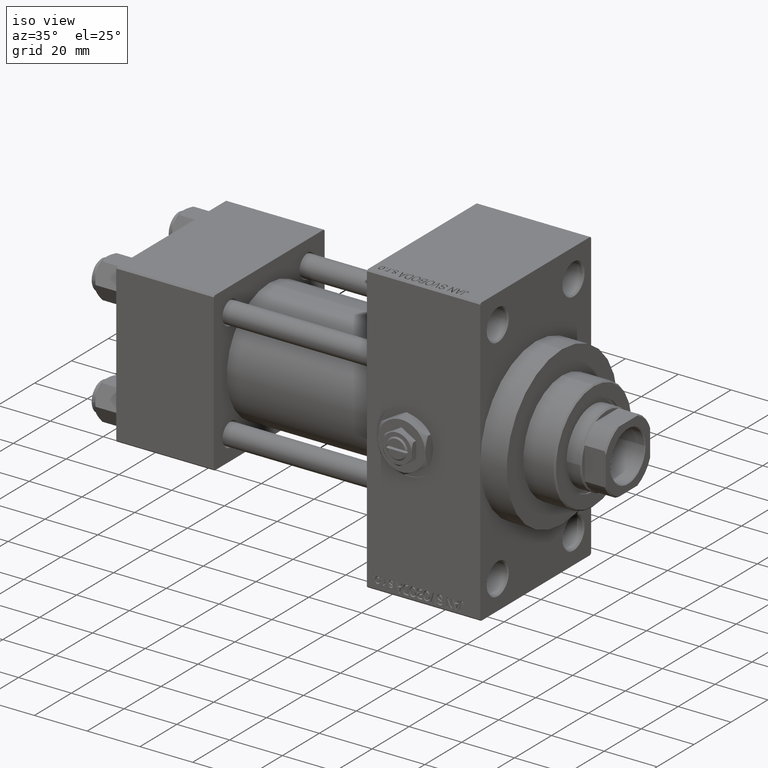
[diagram: clean part render]
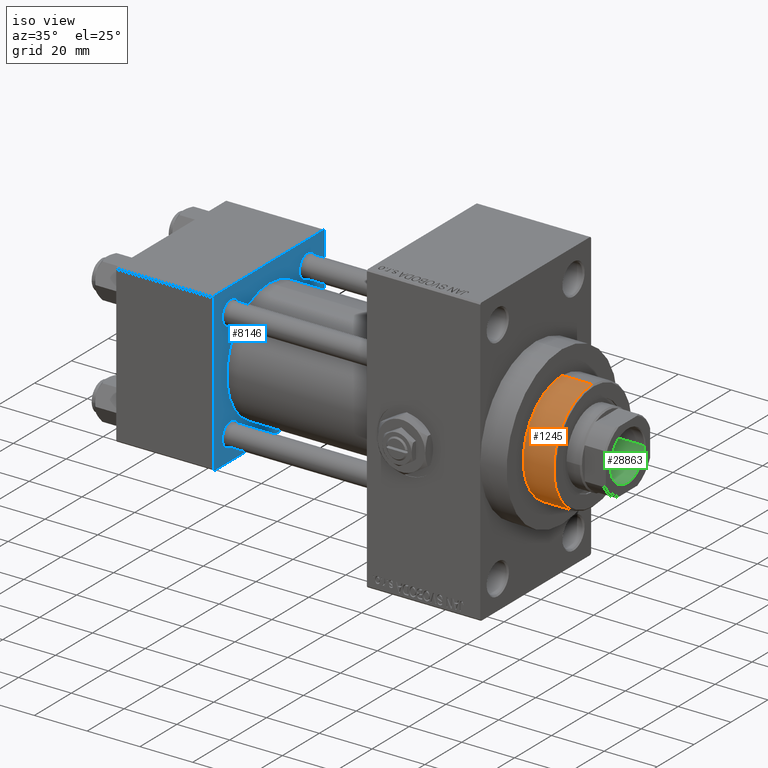
[diagram: same view with three faces highlighted in distinct colors, each labeled with its STEP entity id]
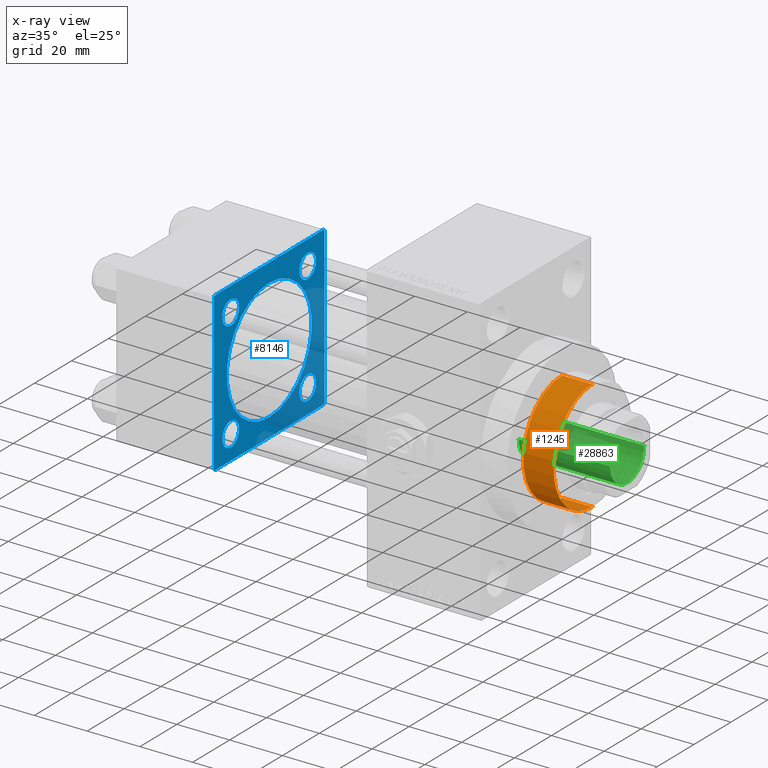
[diagram: x-ray of the same camera — body ghosted, the three highlighted faces saturated]
A machine part, iso view with three faces highlighted in distinct colors.
The next image is the same camera in x-ray (body ghosted, the three faces saturated) — at least one of them is partly hidden behind the body in this view.
Their STEP definitions:

[orange] entity #1245 — the highlighted cylindrical surface (partial cylindrical patch) has radius 21 mm, axis along (-1, 0, 0).
#121 = CARTESIAN_POINT ( 'NONE',  ( -21.00000000000000000, 0.000000000000000000, 55.26000000000000512 ) ) ;
#1245 = ADVANCED_FACE ( 'NONE', ( #4365 ), #20135, .T. ) ;
#1433 = CARTESIAN_POINT ( 'NONE',  ( 21.00000000000000000, 2.571758278209441661E-15, 54.75999999999999091 ) ) ;
#3029 = VERTEX_POINT ( 'NONE', #22249 ) ;
#4365 = FACE_OUTER_BOUND ( 'NONE', #26308, .T. ) ;
#4916 = EDGE_CURVE ( 'NONE', #46135, #16933, #9505, .T. ) ;
#7906 = ORIENTED_EDGE ( 'NONE', *, *, #4916, .T. ) ;
#8801 = DIRECTION ( 'NONE',  ( -0.000000000000000000, -0.000000000000000000, -1.000000000000000000 ) ) ;
#9505 = LINE ( 'NONE', #19871, #23801 ) ;
#9997 = DIRECTION ( 'NONE',  ( 0.000000000000000000, 0.000000000000000000, -1.000000000000000000 ) ) ;
#10892 = VERTEX_POINT ( 'NONE', #17911 ) ;
#12407 = ORIENTED_EDGE ( 'NONE', *, *, #35290, .T. ) ;
#12618 = CIRCLE ( 'NONE', #41740, 21.00000000000000000 ) ;
#13113 = CIRCLE ( 'NONE', #34368, 21.00000000000000000 ) ;
#15714 = CARTESIAN_POINT ( 'NONE',  ( 0.000000000000000000, 0.000000000000000000, 55.26000000000000512 ) ) ;
#16933 = VERTEX_POINT ( 'NONE', #46580 ) ;
#17911 = CARTESIAN_POINT ( 'NONE',  ( -21.00000000000000000, 0.000000000000000000, 43.25999999999999801 ) ) ;
#19871 = CARTESIAN_POINT ( 'NONE',  ( 21.00000000000000000, 2.571758278209441661E-15, 55.26000000000000512 ) ) ;
#20135 = CYLINDRICAL_SURFACE ( 'NONE', #32700, 21.00000000000000000 ) ;
#20826 = DIRECTION ( 'NONE',  ( 1.000000000000000000, 0.000000000000000000, 0.000000000000000000 ) ) ;
#22249 = CARTESIAN_POINT ( 'NONE',  ( -21.00000000000000000, 0.000000000000000000, 54.75999999999999091 ) ) ;
#23801 = VECTOR ( 'NONE', #35396, 1000.000000000000000 ) ;
#26308 = EDGE_LOOP ( 'NONE', ( #43776, #7906, #12407, #31613 ) ) ;
#26350 = DIRECTION ( 'NONE',  ( 0.000000000000000000, 0.000000000000000000, 1.000000000000000000 ) ) ;
#31613 = ORIENTED_EDGE ( 'NONE', *, *, #33954, .F. ) ;
#32700 = AXIS2_PLACEMENT_3D ( 'NONE', #15714, #8801, #38875 ) ;
#33514 = VECTOR ( 'NONE', #45191, 1000.000000000000000 ) ;
#33876 = LINE ( 'NONE', #121, #33514 ) ;
#33954 = EDGE_CURVE ( 'NONE', #3029, #10892, #33876, .T. ) ;
#34368 = AXIS2_PLACEMENT_3D ( 'NONE', #48040, #26350, #44597 ) ;
#35290 = EDGE_CURVE ( 'NONE', #16933, #10892, #13113, .T. ) ;
#35396 = DIRECTION ( 'NONE',  ( -0.000000000000000000, -0.000000000000000000, -1.000000000000000000 ) ) ;
#38875 = DIRECTION ( 'NONE',  ( -1.000000000000000000, 0.000000000000000000, 0.000000000000000000 ) ) ;
#41740 = AXIS2_PLACEMENT_3D ( 'NONE', #43269, #9997, #20826 ) ;
#43269 = CARTESIAN_POINT ( 'NONE',  ( 0.000000000000000000, 0.000000000000000000, 54.75999999999999091 ) ) ;
#43714 = EDGE_CURVE ( 'NONE', #3029, #46135, #12618, .T. ) ;
#43776 = ORIENTED_EDGE ( 'NONE', *, *, #43714, .T. ) ;
#44597 = DIRECTION ( 'NONE',  ( 1.000000000000000000, 0.000000000000000000, 0.000000000000000000 ) ) ;
#45191 = DIRECTION ( 'NONE',  ( -0.000000000000000000, -0.000000000000000000, -1.000000000000000000 ) ) ;
#46135 = VERTEX_POINT ( 'NONE', #1433 ) ;
#46580 = CARTESIAN_POINT ( 'NONE',  ( 21.00000000000000000, 2.571758278209441661E-15, 43.25999999999999801 ) ) ;
#48040 = CARTESIAN_POINT ( 'NONE',  ( 0.000000000000000000, 0.000000000000000000, 43.25999999999999801 ) ) ;

[blue] entity #8146 — the highlighted planar face has unit normal (-1, 0, 0).
#172 = ORIENTED_EDGE ( 'NONE', *, *, #5294, .T. ) ;
#246 = VECTOR ( 'NONE', #44716, 999.9999999999998863 ) ;
#896 = CARTESIAN_POINT ( 'NONE',  ( 37.00000000000000000, 20.84999999999999787, -20.85000000000000142 ) ) ;
#1476 = AXIS2_PLACEMENT_3D ( 'NONE', #33502, #11809, #41863 ) ;
#2222 = CARTESIAN_POINT ( 'NONE',  ( 37.00000000000000000, -20.84999999999999076, -25.34999999999998010 ) ) ;
#2244 = CIRCLE ( 'NONE', #3040, 4.499999999999976019 ) ;
#2251 = CIRCLE ( 'NONE', #28247, 4.499999999999976019 ) ;
#2687 = FACE_BOUND ( 'NONE', #41551, .T. ) ;
#3040 = AXIS2_PLACEMENT_3D ( 'NONE', #8715, #16102, #8952 ) ;
#3218 = ORIENTED_EDGE ( 'NONE', *, *, #6138, .T. ) ;
#4221 = EDGE_CURVE ( 'NONE', #5354, #31389, #23414, .T. ) ;
#4247 = VERTEX_POINT ( 'NONE', #38455 ) ;
#4373 = CARTESIAN_POINT ( 'NONE',  ( 37.00000000000000000, -20.84999999999999076, -20.85000000000000497 ) ) ;
#4715 = VECTOR ( 'NONE', #4931, 1000.000000000000114 ) ;
#4931 = DIRECTION ( 'NONE',  ( -0.000000000000000000, -0.7071067811865474617, -0.7071067811865474617 ) ) ;
#4957 = CARTESIAN_POINT ( 'NONE',  ( 37.00000000000000000, -30.00000000000000000, 29.49999999999999289 ) ) ;
#5294 = EDGE_CURVE ( 'NONE', #12625, #9558, #32482, .T. ) ;
#5354 = VERTEX_POINT ( 'NONE', #36799 ) ;
#5417 = LINE ( 'NONE', #31798, #4715 ) ;
#5592 = CARTESIAN_POINT ( 'NONE',  ( 37.00000000000000000, -20.84999999999999076, 25.34999999999998010 ) ) ;
#5652 = CARTESIAN_POINT ( 'NONE',  ( 37.00000000000000000, -20.84999999999999076, -20.85000000000000497 ) ) ;
#5807 = DIRECTION ( 'NONE',  ( 0.000000000000000000, 0.000000000000000000, -1.000000000000000000 ) ) ;
#6080 = ORIENTED_EDGE ( 'NONE', *, *, #24672, .T. ) ;
#6138 = EDGE_CURVE ( 'NONE', #5354, #24399, #14667, .T. ) ;
#6222 = DIRECTION ( 'NONE',  ( 0.000000000000000000, 0.000000000000000000, -1.000000000000000000 ) ) ;
#6771 = CARTESIAN_POINT ( 'NONE',  ( 37.00000000000000000, 29.99999999999999289, 29.50000000000000000 ) ) ;
#7490 = DIRECTION ( 'NONE',  ( 0.000000000000000000, 0.7071067811865474617, -0.7071067811865474617 ) ) ;
#7547 = VECTOR ( 'NONE', #32965, 1000.000000000000000 ) ;
#7768 = CARTESIAN_POINT ( 'NONE',  ( 37.00000000000000000, 20.84999999999999787, 16.35000000000002274 ) ) ;
#7875 = EDGE_LOOP ( 'NONE', ( #33198, #41206 ) ) ;
#8146 = ADVANCED_FACE ( 'NONE', ( #14487, #24869, #47289, #2687, #29527, #37161 ), #36687, .F. ) ;
#8715 = CARTESIAN_POINT ( 'NONE',  ( 37.00000000000000000, -20.84999999999999076, 20.85000000000000497 ) ) ;
#8952 = DIRECTION ( 'NONE',  ( 0.000000000000000000, 0.000000000000000000, 1.000000000000000000 ) ) ;
#9192 = CARTESIAN_POINT ( 'NONE',  ( 37.00000000000000000, 29.49999999999999289, 30.00000000000000000 ) ) ;
#9206 = DIRECTION ( 'NONE',  ( -1.000000000000000000, 0.000000000000000000, -0.000000000000000000 ) ) ;
#9347 = VERTEX_POINT ( 'NONE', #5592 ) ;
#9558 = VERTEX_POINT ( 'NONE', #7768 ) ;
#9945 = DIRECTION ( 'NONE',  ( 0.000000000000000000, 0.000000000000000000, 1.000000000000000000 ) ) ;
#10408 = VECTOR ( 'NONE', #16512, 1000.000000000000000 ) ;
#10411 = VERTEX_POINT ( 'NONE', #31070 ) ;
#10559 = ORIENTED_EDGE ( 'NONE', *, *, #40265, .F. ) ;
#10564 = EDGE_LOOP ( 'NONE', ( #26357, #3218, #45908, #22432, #15122, #38532, #14546, #31291 ) ) ;
#10798 = DIRECTION ( 'NONE',  ( -0.000000000000000000, 0.000000000000000000, 1.000000000000000000 ) ) ;
#11200 = LINE ( 'NONE', #36837, #29575 ) ;
#11738 = EDGE_LOOP ( 'NONE', ( #47345, #10559 ) ) ;
#11768 = CIRCLE ( 'NONE', #21193, 4.499999999999976019 ) ;
#11809 = DIRECTION ( 'NONE',  ( 1.000000000000000000, -0.000000000000000000, 0.000000000000000000 ) ) ;
#11823 = LINE ( 'NONE', #23383, #14963 ) ;
#12179 = DIRECTION ( 'NONE',  ( 0.000000000000000000, 0.000000000000000000, 1.000000000000000000 ) ) ;
#12625 = VERTEX_POINT ( 'NONE', #24670 ) ;
#12783 = CARTESIAN_POINT ( 'NONE',  ( 37.00000000000000000, -30.00000000000000000, -29.50000000000001776 ) ) ;
#12969 = CARTESIAN_POINT ( 'NONE',  ( 37.00000000000000000, -30.00000000000000000, 29.99999999999999289 ) ) ;
#13065 = DIRECTION ( 'NONE',  ( 0.000000000000000000, 0.000000000000000000, 1.000000000000000000 ) ) ;
#13363 = VERTEX_POINT ( 'NONE', #4957 ) ;
#13382 = CARTESIAN_POINT ( 'NONE',  ( 37.00000000000000000, 29.99999999999999289, 30.00000000000000000 ) ) ;
#14311 = VERTEX_POINT ( 'NONE', #35110 ) ;
#14487 = FACE_BOUND ( 'NONE', #26674, .T. ) ;
#14546 = ORIENTED_EDGE ( 'NONE', *, *, #25121, .T. ) ;
#14633 = CARTESIAN_POINT ( 'NONE',  ( 37.00000000000000000, 20.84999999999999787, 20.85000000000000142 ) ) ;
#14667 = LINE ( 'NONE', #18355, #246 ) ;
#14963 = VECTOR ( 'NONE', #47035, 1000.000000000000114 ) ;
#15122 = ORIENTED_EDGE ( 'NONE', *, *, #33386, .T. ) ;
#15547 = CARTESIAN_POINT ( 'NONE',  ( 37.00000000000000000, -20.84999999999999076, 16.35000000000002629 ) ) ;
#15602 = VERTEX_POINT ( 'NONE', #36231 ) ;
#15704 = EDGE_CURVE ( 'NONE', #14311, #35899, #23213, .T. ) ;
#16102 = DIRECTION ( 'NONE',  ( -1.000000000000000000, 0.000000000000000000, -0.000000000000000000 ) ) ;
#16512 = DIRECTION ( 'NONE',  ( 0.000000000000000000, -1.000000000000000000, -1.156482317317871725E-16 ) ) ;
#16536 = AXIS2_PLACEMENT_3D ( 'NONE', #14633, #29670, #48623 ) ;
#17336 = AXIS2_PLACEMENT_3D ( 'NONE', #46814, #46329, #13065 ) ;
#17449 = LINE ( 'NONE', #40126, #7547 ) ;
#17607 = AXIS2_PLACEMENT_3D ( 'NONE', #40854, #39905, #10798 ) ;
#18296 = VECTOR ( 'NONE', #5807, 1000.000000000000000 ) ;
#18355 = CARTESIAN_POINT ( 'NONE',  ( 37.00000000000000000, 29.99999999999999289, -29.50000000000000000 ) ) ;
#19354 = DIRECTION ( 'NONE',  ( -1.000000000000000000, 0.000000000000000000, -0.000000000000000000 ) ) ;
#19408 = DIRECTION ( 'NONE',  ( -1.000000000000000000, 0.000000000000000000, -0.000000000000000000 ) ) ;
#19605 = AXIS2_PLACEMENT_3D ( 'NONE', #48456, #22831, #33206 ) ;
#19961 = CARTESIAN_POINT ( 'NONE',  ( 37.00000000000000000, 29.99999999999999289, -30.00000000000000000 ) ) ;
#20190 = DIRECTION ( 'NONE',  ( 0.000000000000000000, 0.000000000000000000, 1.000000000000000000 ) ) ;
#20757 = DIRECTION ( 'NONE',  ( 0.000000000000000000, 0.000000000000000000, 1.000000000000000000 ) ) ;
#20915 = DIRECTION ( 'NONE',  ( -1.000000000000000000, 0.000000000000000000, -0.000000000000000000 ) ) ;
#21193 = AXIS2_PLACEMENT_3D ( 'NONE', #5652, #20915, #20190 ) ;
#21265 = CIRCLE ( 'NONE', #17336, 4.499999999999976019 ) ;
#21923 = EDGE_CURVE ( 'NONE', #9347, #48445, #2244, .T. ) ;
#22432 = ORIENTED_EDGE ( 'NONE', *, *, #25990, .T. ) ;
#22554 = CARTESIAN_POINT ( 'NONE',  ( 37.00000000000000000, -29.50000000000000000, -30.00000000000000711 ) ) ;
#22831 = DIRECTION ( 'NONE',  ( 1.000000000000000000, -0.000000000000000000, 0.000000000000000000 ) ) ;
#23213 = CIRCLE ( 'NONE', #29526, 4.499999999999976019 ) ;
#23383 = CARTESIAN_POINT ( 'NONE',  ( 37.00000000000000000, 29.49999999999999289, 30.00000000000000000 ) ) ;
#23414 = LINE ( 'NONE', #19961, #10408 ) ;
#24399 = VERTEX_POINT ( 'NONE', #34780 ) ;
#24670 = CARTESIAN_POINT ( 'NONE',  ( 37.00000000000000000, 20.84999999999999787, 25.34999999999997655 ) ) ;
#24672 = EDGE_CURVE ( 'NONE', #48445, #9347, #28308, .T. ) ;
#24869 = FACE_BOUND ( 'NONE', #7875, .T. ) ;
#25121 = EDGE_CURVE ( 'NONE', #13363, #34712, #47682, .T. ) ;
#25990 = EDGE_CURVE ( 'NONE', #29564, #34034, #11823, .T. ) ;
#26357 = ORIENTED_EDGE ( 'NONE', *, *, #4221, .F. ) ;
#26674 = EDGE_LOOP ( 'NONE', ( #31829, #43167 ) ) ;
#27324 = EDGE_CURVE ( 'NONE', #9558, #12625, #37791, .T. ) ;
#27419 = CIRCLE ( 'NONE', #1476, 23.00000000000000000 ) ;
#27638 = ORIENTED_EDGE ( 'NONE', *, *, #21923, .T. ) ;
#27941 = CARTESIAN_POINT ( 'NONE',  ( 37.00000000000000000, 20.84999999999999787, 20.85000000000000142 ) ) ;
#28247 = AXIS2_PLACEMENT_3D ( 'NONE', #896, #19354, #20757 ) ;
#28308 = CIRCLE ( 'NONE', #40885, 4.499999999999976019 ) ;
#29020 = CIRCLE ( 'NONE', #19605, 23.00000000000000000 ) ;
#29526 = AXIS2_PLACEMENT_3D ( 'NONE', #4373, #19408, #37668 ) ;
#29527 = FACE_BOUND ( 'NONE', #11738, .T. ) ;
#29564 = VERTEX_POINT ( 'NONE', #6771 ) ;
#29575 = VECTOR ( 'NONE', #7490, 1000.000000000000114 ) ;
#29670 = DIRECTION ( 'NONE',  ( -1.000000000000000000, 0.000000000000000000, -0.000000000000000000 ) ) ;
#31070 = CARTESIAN_POINT ( 'NONE',  ( 37.00000000000000000, -2.602085213965210642E-15, 23.00000000000000000 ) ) ;
#31291 = ORIENTED_EDGE ( 'NONE', *, *, #33893, .T. ) ;
#31389 = VERTEX_POINT ( 'NONE', #22554 ) ;
#31798 = CARTESIAN_POINT ( 'NONE',  ( 37.00000000000000000, -30.00000000000000000, 29.49999999999999289 ) ) ;
#31829 = ORIENTED_EDGE ( 'NONE', *, *, #45077, .T. ) ;
#32482 = CIRCLE ( 'NONE', #39543, 4.499999999999976019 ) ;
#32933 = EDGE_LOOP ( 'NONE', ( #6080, #27638 ) ) ;
#32965 = DIRECTION ( 'NONE',  ( 0.000000000000000000, -1.000000000000000000, -1.156482317317871725E-16 ) ) ;
#33198 = ORIENTED_EDGE ( 'NONE', *, *, #47091, .T. ) ;
#33206 = DIRECTION ( 'NONE',  ( 0.000000000000000000, 0.000000000000000000, 1.000000000000000000 ) ) ;
#33386 = EDGE_CURVE ( 'NONE', #34034, #4247, #17449, .T. ) ;
#33502 = CARTESIAN_POINT ( 'NONE',  ( 37.00000000000000000, -2.602085213965210642E-15, 0.000000000000000000 ) ) ;
#33893 = EDGE_CURVE ( 'NONE', #34712, #31389, #11200, .T. ) ;
#34034 = VERTEX_POINT ( 'NONE', #9192 ) ;
#34712 = VERTEX_POINT ( 'NONE', #12783 ) ;
#34780 = CARTESIAN_POINT ( 'NONE',  ( 37.00000000000000000, 29.99999999999999289, -29.50000000000000000 ) ) ;
#35110 = CARTESIAN_POINT ( 'NONE',  ( 37.00000000000000000, -20.84999999999999076, -16.35000000000002629 ) ) ;
#35899 = VERTEX_POINT ( 'NONE', #2222 ) ;
#36231 = CARTESIAN_POINT ( 'NONE',  ( 37.00000000000000000, 2.146024240737012665E-16, -23.00000000000000000 ) ) ;
#36687 = PLANE ( 'NONE',  #17607 ) ;
#36799 = CARTESIAN_POINT ( 'NONE',  ( 37.00000000000000000, 29.49999999999997868, -30.00000000000000000 ) ) ;
#36837 = CARTESIAN_POINT ( 'NONE',  ( 37.00000000000000000, -29.50000000000001066, -30.00000000000000711 ) ) ;
#37161 = FACE_OUTER_BOUND ( 'NONE', #10564, .T. ) ;
#37668 = DIRECTION ( 'NONE',  ( 0.000000000000000000, 0.000000000000000000, 1.000000000000000000 ) ) ;
#37791 = CIRCLE ( 'NONE', #16536, 4.499999999999976019 ) ;
#37997 = VERTEX_POINT ( 'NONE', #46223 ) ;
#38455 = CARTESIAN_POINT ( 'NONE',  ( 37.00000000000000000, -29.49999999999998579, 29.99999999999999289 ) ) ;
#38532 = ORIENTED_EDGE ( 'NONE', *, *, #47190, .T. ) ;
#39262 = LINE ( 'NONE', #13382, #45707 ) ;
#39483 = EDGE_CURVE ( 'NONE', #37997, #40785, #2251, .T. ) ;
#39543 = AXIS2_PLACEMENT_3D ( 'NONE', #27941, #9206, #12179 ) ;
#39905 = DIRECTION ( 'NONE',  ( -1.000000000000000000, 0.000000000000000000, -0.000000000000000000 ) ) ;
#39960 = EDGE_CURVE ( 'NONE', #10411, #15602, #27419, .T. ) ;
#40013 = CARTESIAN_POINT ( 'NONE',  ( 37.00000000000000000, -20.84999999999999076, 20.85000000000000497 ) ) ;
#40126 = CARTESIAN_POINT ( 'NONE',  ( 37.00000000000000000, 29.99999999999999289, 30.00000000000000000 ) ) ;
#40265 = EDGE_CURVE ( 'NONE', #15602, #10411, #29020, .T. ) ;
#40785 = VERTEX_POINT ( 'NONE', #46168 ) ;
#40854 = CARTESIAN_POINT ( 'NONE',  ( 37.00000000000000000, 0.000000000000000000, 0.000000000000000000 ) ) ;
#40885 = AXIS2_PLACEMENT_3D ( 'NONE', #40013, #47392, #9945 ) ;
#41206 = ORIENTED_EDGE ( 'NONE', *, *, #39483, .T. ) ;
#41551 = EDGE_LOOP ( 'NONE', ( #48607, #172 ) ) ;
#41863 = DIRECTION ( 'NONE',  ( 0.000000000000000000, 0.000000000000000000, 1.000000000000000000 ) ) ;
#43167 = ORIENTED_EDGE ( 'NONE', *, *, #15704, .T. ) ;
#44716 = DIRECTION ( 'NONE',  ( -0.000000000000000000, 0.7071067811865574537, 0.7071067811865376918 ) ) ;
#45077 = EDGE_CURVE ( 'NONE', #35899, #14311, #11768, .T. ) ;
#45707 = VECTOR ( 'NONE', #6222, 1000.000000000000000 ) ;
#45908 = ORIENTED_EDGE ( 'NONE', *, *, #48128, .F. ) ;
#46168 = CARTESIAN_POINT ( 'NONE',  ( 37.00000000000000000, 20.84999999999999787, -25.34999999999997655 ) ) ;
#46223 = CARTESIAN_POINT ( 'NONE',  ( 37.00000000000000000, 20.84999999999999787, -16.35000000000002274 ) ) ;
#46329 = DIRECTION ( 'NONE',  ( -1.000000000000000000, 0.000000000000000000, -0.000000000000000000 ) ) ;
#46814 = CARTESIAN_POINT ( 'NONE',  ( 37.00000000000000000, 20.84999999999999787, -20.85000000000000142 ) ) ;
#47035 = DIRECTION ( 'NONE',  ( 0.000000000000000000, -0.7071067811865474617, 0.7071067811865474617 ) ) ;
#47091 = EDGE_CURVE ( 'NONE', #40785, #37997, #21265, .T. ) ;
#47190 = EDGE_CURVE ( 'NONE', #4247, #13363, #5417, .T. ) ;
#47289 = FACE_BOUND ( 'NONE', #32933, .T. ) ;
#47345 = ORIENTED_EDGE ( 'NONE', *, *, #39960, .F. ) ;
#47392 = DIRECTION ( 'NONE',  ( -1.000000000000000000, 0.000000000000000000, -0.000000000000000000 ) ) ;
#47682 = LINE ( 'NONE', #12969, #18296 ) ;
#48128 = EDGE_CURVE ( 'NONE', #29564, #24399, #39262, .T. ) ;
#48445 = VERTEX_POINT ( 'NONE', #15547 ) ;
#48456 = CARTESIAN_POINT ( 'NONE',  ( 37.00000000000000000, -2.602085213965210642E-15, 0.000000000000000000 ) ) ;
#48607 = ORIENTED_EDGE ( 'NONE', *, *, #27324, .T. ) ;
#48623 = DIRECTION ( 'NONE',  ( 0.000000000000000000, 0.000000000000000000, 1.000000000000000000 ) ) ;

[green] entity #28863 — the highlighted cylindrical surface (edge-blend (fillet) strip) has radius 9.25 mm, axis along (1, 0, 0).
#488 = ORIENTED_EDGE ( 'NONE', *, *, #45613, .T. ) ;
#2554 = DIRECTION ( 'NONE',  ( -0.000000000000000000, -0.000000000000000000, 1.000000000000000000 ) ) ;
#3990 = CIRCLE ( 'NONE', #18946, 9.249999999999994671 ) ;
#4212 = CARTESIAN_POINT ( 'NONE',  ( 0.000000000000000000, 0.000000000000000000, 101.0000000000000000 ) ) ;
#5243 = VERTEX_POINT ( 'NONE', #23508 ) ;
#5490 = AXIS2_PLACEMENT_3D ( 'NONE', #14524, #41139, #26584 ) ;
#7544 = ORIENTED_EDGE ( 'NONE', *, *, #19803, .T. ) ;
#9876 = AXIS2_PLACEMENT_3D ( 'NONE', #4212, #19736, #11867 ) ;
#10940 = VERTEX_POINT ( 'NONE', #34897 ) ;
#11453 = CIRCLE ( 'NONE', #9876, 9.249999999999992895 ) ;
#11644 = EDGE_CURVE ( 'NONE', #5243, #28513, #11453, .T. ) ;
#11867 = DIRECTION ( 'NONE',  ( 1.000000000000000000, 0.000000000000000000, 0.000000000000000000 ) ) ;
#13200 = CARTESIAN_POINT ( 'NONE',  ( -9.249999999999992895, 1.132798289211300712E-15, 101.0000000000000000 ) ) ;
#13985 = VECTOR ( 'NONE', #27319, 1000.000000000000000 ) ;
#14524 = CARTESIAN_POINT ( 'NONE',  ( 0.000000000000000000, 0.000000000000000000, 136.0000000000000000 ) ) ;
#16621 = DIRECTION ( 'NONE',  ( 0.000000000000000000, 0.000000000000000000, 1.000000000000000000 ) ) ;
#17747 = FACE_OUTER_BOUND ( 'NONE', #23386, .T. ) ;
#18946 = AXIS2_PLACEMENT_3D ( 'NONE', #45221, #16621, #42997 ) ;
#19736 = DIRECTION ( 'NONE',  ( -0.000000000000000000, -0.000000000000000000, 1.000000000000000000 ) ) ;
#19803 = EDGE_CURVE ( 'NONE', #5243, #10940, #34234, .T. ) ;
#20636 = ORIENTED_EDGE ( 'NONE', *, *, #11644, .F. ) ;
#21262 = CARTESIAN_POINT ( 'NONE',  ( -9.249999999999994671, 1.132798289211300909E-15, 136.0000000000000000 ) ) ;
#23386 = EDGE_LOOP ( 'NONE', ( #26942, #20636, #7544, #488 ) ) ;
#23508 = CARTESIAN_POINT ( 'NONE',  ( 9.249999999999992895, 0.000000000000000000, 101.0000000000000000 ) ) ;
#26373 = VERTEX_POINT ( 'NONE', #36805 ) ;
#26584 = DIRECTION ( 'NONE',  ( 1.000000000000000000, 0.000000000000000000, 0.000000000000000000 ) ) ;
#26942 = ORIENTED_EDGE ( 'NONE', *, *, #40841, .F. ) ;
#27076 = CARTESIAN_POINT ( 'NONE',  ( 9.249999999999994671, 0.000000000000000000, 136.0000000000000000 ) ) ;
#27319 = DIRECTION ( 'NONE',  ( -0.000000000000000000, -0.000000000000000000, 1.000000000000000000 ) ) ;
#28513 = VERTEX_POINT ( 'NONE', #13200 ) ;
#28863 = ADVANCED_FACE ( 'NONE', ( #17747 ), #48271, .F. ) ;
#29047 = VECTOR ( 'NONE', #2554, 1000.000000000000000 ) ;
#34234 = LINE ( 'NONE', #27076, #13985 ) ;
#34897 = CARTESIAN_POINT ( 'NONE',  ( 9.249999999999994671, 0.000000000000000000, 135.7000000000000455 ) ) ;
#36805 = CARTESIAN_POINT ( 'NONE',  ( -9.249999999999994671, 1.132798289211300909E-15, 135.7000000000000455 ) ) ;
#39275 = LINE ( 'NONE', #21262, #29047 ) ;
#40841 = EDGE_CURVE ( 'NONE', #28513, #26373, #39275, .T. ) ;
#41139 = DIRECTION ( 'NONE',  ( -0.000000000000000000, -0.000000000000000000, 1.000000000000000000 ) ) ;
#42997 = DIRECTION ( 'NONE',  ( 1.000000000000000000, 0.000000000000000000, 0.000000000000000000 ) ) ;
#45221 = CARTESIAN_POINT ( 'NONE',  ( 0.000000000000000000, 0.000000000000000000, 135.7000000000000455 ) ) ;
#45613 = EDGE_CURVE ( 'NONE', #10940, #26373, #3990, .T. ) ;
#48271 = CYLINDRICAL_SURFACE ( 'NONE', #5490, 9.249999999999994671 ) ;